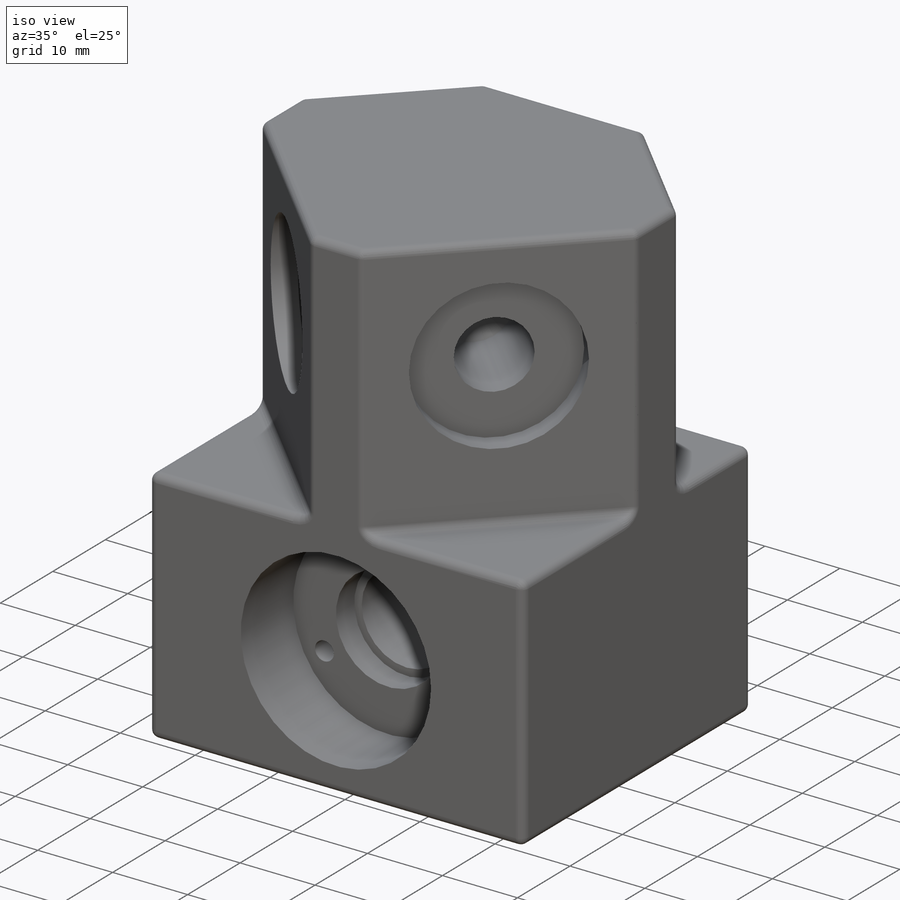
[diagram: iso view]
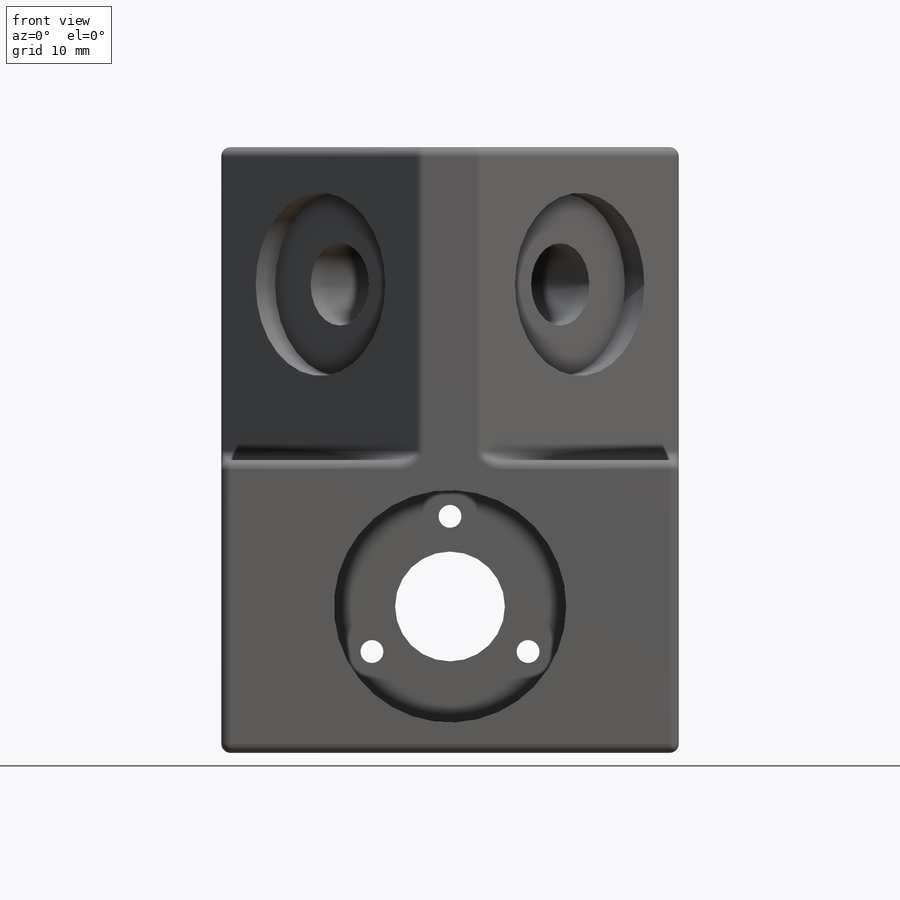
[diagram: front view]
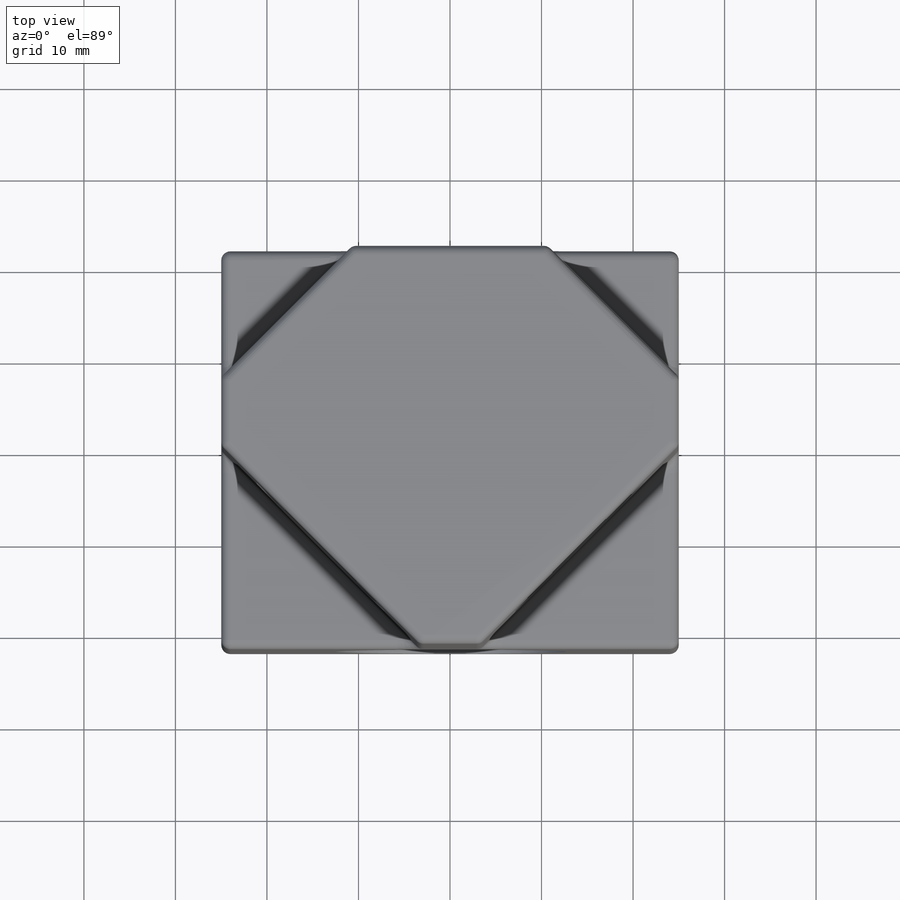
[diagram: top view]
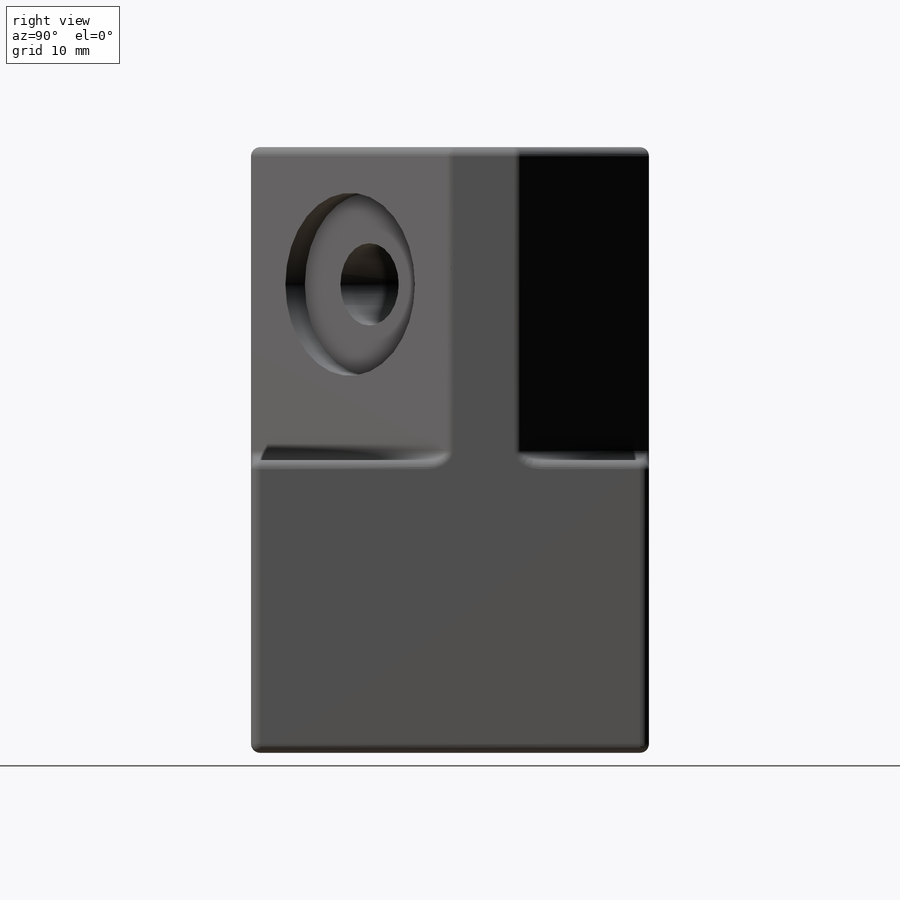
[diagram: right view]
SOLIDWORKS PART (.sldprt)
format: sldprt  version: not decoded by parser v0  size: 641,024 bytes
history: native  units: mm
features: sketch x19, cut_extrude x10, mirror x9, hole x4, fillet x3, material x1, extrude x1, thread x1 (+16 scaffold rows collapsed)
feature tree (64):
  scaffold x16  (default folders/planes/origin — collapsed)
  material  "Stainless Steel (ferritic)"
  sketch  "Sketch1"  dims[D1=63.5mm]
  extrude  "Boss-Extrude1"  Depth=66.2mm
  sketch  "Sketch2"  dims[D1=25.4mm D2=16.0mm]
  cut_extrude  "Cut-Extrude4"  Depth=10mm
  sketch  "Sketch3"  dims[D1=14.0mm]
  cut_extrude  "Cut-Extrude5"  Depth=3.5mm
  sketch  "Sketch4"  dims[D1=1.0mm]
  cut_extrude  "Cut-Extrude6"  [1 undecoded]
  sketch  "Sketch5"  dims[c1.D1=~37.961466mm c2.D1=45.0deg c2.D2=15.0mm c2.D3=4.0mm c2.D4=15.0mm c2.D5=0.5mm]
  cut_extrude  "Cut-Extrude7"  Depth=32mm
  sketch  "Sketch6"  dims[D1=25.0mm]
  cut_extrude  "Cut-Extrude9"  [1 undecoded]
  sketch  "Sketch7"
  cut_extrude  "Cut-Extrude10"  Depth=20mm
  sketch  "Sketch8"  dims[D1=25.4mm D2=50.0mm]
  cut_extrude  "Cut-Extrude11"  Depth=5mm
  sketch  "Sketch9"  dims[D1=7.5mm D2=~16.727922mm]
  cut_extrude  "Cut-Extrude12"  [1 undecoded]
  sketch  "Sketch10"  dims[D2=20.0mm D1=15.0mm]
  cut_extrude  "Cut-Extrude13"  Depth=3mm
  hole  "M10x1.0 Tapped Hole1"  Diameter=9mm Depth=13mm
  sketch  "Sketch12"
  sketch  "Sketch11"  dims[hole-wizard template sketch: 46 standard entries collapsed; hole parameters kept: c15.Tap Drill Dia.=9.0mm c15.Tap Drill Depth=13.0mm c15.D3=~14.816244mm c15.Drill Angle=118.0deg]
  thread  "Hole Thread1"  Diameter=10mm  [1 undecoded]
  mirror  "Mirror1"
  fillet  "Fillet3"  Radius=10mm
  fillet  "Fillet4"  Radius=10mm
  sketch  "Sketch13"
  cut_extrude  "Cut-Extrude14"  Depth=3.5mm
  hole  "M3x0.5 Tapped Hole1"  Diameter=2.5mm Depth=22mm
  sketch  "Sketch15"  dims[c1.D1=~37.646407mm c2.D1=45.0deg c3.D1=46.0mm]
  sketch  "Sketch14"  dims[hole-wizard template sketch: 47 standard entries collapsed; hole parameters kept: c15.Tap Drill Depth=22.0mm c15.D3=~14.816244mm c15.Drill Angle=118.0deg]
  mirror  "Hole Thread2"
  mirror  "Hole Thread3"
  fillet  "Fillet5"  Radius=1mm
  hole  "M3x0.5 Tapped Hole2"  Diameter=2.5mm Depth=22mm
  sketch  "Sketch17"  dims[c1.D1=~4.278961mm c2.D1=120.0deg c2.D2=~9.465516mm c3.D2=120.0deg]
  sketch  "Sketch16"  dims[hole-wizard template sketch: 47 standard entries collapsed; hole parameters kept: c15.Tap Drill Depth=22.0mm c15.D3=~14.816244mm c15.Drill Angle=118.0deg]
  mirror  "Hole Thread4"
  mirror  "Hole Thread5"
  mirror  "Hole Thread6"
  mirror  "Hole Thread8"
  hole  "M3x0.5 Tapped Hole3"  Diameter=2.5mm Depth=22mm
  sketch  "Sketch19"  dims[c1.D1=~11.122453mm c2.D1=120.0deg c2.D2=~10.584856mm c3.D2=120.0deg]
  sketch  "Sketch18"  dims[hole-wizard template sketch: 47 standard entries collapsed; hole parameters kept: c15.Tap Drill Depth=22.0mm c15.D3=~14.816244mm c15.Drill Angle=118.0deg]
  mirror  "Hole Thread7"
  mirror  "Hole Thread9"
decode coverage: 32 of 47 modeling features carry decoded parameters
note: ~ marks probable driven/reference dimensions
note: 4 parameter values undecoded
summary: no parameter record found for 3 features; Diameter pulled from absorbed wizard sketch
note: suppression state not decoded; provenance and decode notes live in map.json
